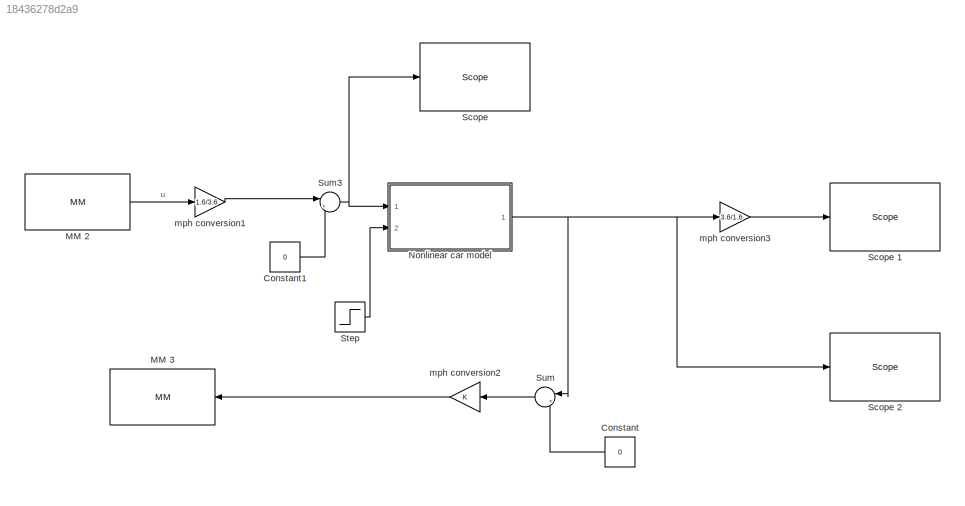
MODEL slx_18436278d2a9
KIND model
BLOCK [Constant] Constant
  Value = 0
BLOCK [Constant] Constant1
  Value = 0
BLOCK [Reference] MM 2  REF=xpcdiamondlib/A//D/MM 
  Ports = [0, 1]
  SourceBlock = xpcdiamondlib/A//D/MM
  SourceType = addiamondmm
  base = 0x300
  coupling = 16 single-ended channels
  numChans = 1
  range = -5V to 5V
  sampleTime = 0.01
  showStatus = off
BLOCK [Reference] MM 3  REF=xpcdiamondlib/D//A/MM 
  Ports = [1]
  SourceBlock = xpcdiamondlib/D//A/MM
  SourceType = dadiamondmm
  base = 0x300
  channel = [1]
  initValue = [0]
  range = [5]
  reset = [1]
  sampleTime = 0.01
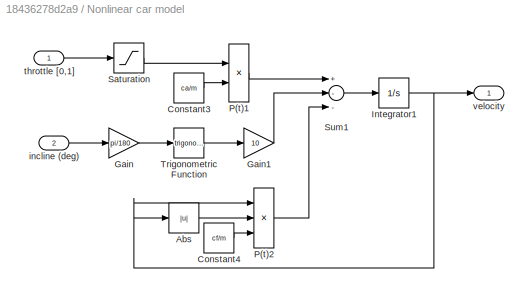
BLOCK [SubSystem] Nonlinear car model
  Ports = [2, 1]
  RequestExecContextInheritance = off
BLOCK [Abs] Nonlinear car model/Abs
BLOCK [Constant] Nonlinear car model/Constant3
  Value = ca/m
BLOCK [Constant] Nonlinear car model/Constant4
  Value = cf/m
BLOCK [Gain] Nonlinear car model/Gain
  Gain = pi/180
BLOCK [Gain] Nonlinear car model/Gain1
  Gain = 10
BLOCK [Integrator] Nonlinear car model/Integrator1
  InitialCondition = 26.67
  LowerSaturationLimit = 0
  Ports = [1, 1]
  UpperSaturationLimit = 1
BLOCK [Product] Nonlinear car model/P(t)1
  Inputs = **
  Ports = [2, 1]
BLOCK [Product] Nonlinear car model/P(t)2
  Inputs = ***
  Ports = [3, 1]
BLOCK [Saturate] Nonlinear car model/Saturation
  InputPortMap = u0
  LowerLimit = -1
  Ports = [1, 1]
  UpperLimit = 3
BLOCK [Sum] Nonlinear car model/Sum1
  Inputs = +--
  Ports = [3, 1]
BLOCK [Trigonometry] Nonlinear car model/Trigonometric Function
  Ports = [1, 1]
BLOCK [Inport] Nonlinear car model/incline (deg)
  IconDisplay = Port number
  Port = 2
BLOCK [Inport] Nonlinear car model/throttle [0,1]
  IconDisplay = Port number
BLOCK [Outport] Nonlinear car model/velocity
  IconDisplay = Port number
BLOCK [Reference] Scope   REF=slrtlib/Displays and
Logging/Scope 
  Ports = [1]
  SourceBlock = slrtlib/Displays and\nLogging/Scope
  SourceType = xpcscopeblock
  autorestart = on
  autostart = on
  dynamicfilemode = off
  filename = datap3.dat
  formatstr = '%15.6f'
  grid = on
  interleave = 1
  maxwritefilesize = 512*1024^2
  mode = Lazy
  noprepostsamples = 0
  nosamples = 5000
  scopeno = 3
  scopetype = File
  triggerlevel = 0.0
  triggermode = FreeRun
  triggersample = 0
  triggerscope = 1
  triggersignal = 1
  triggerslope = Either
  trigsignalfromport = off
  viewmode = Graphical redraw
  writesize = 512
  ylimits = [0,0]
BLOCK [Reference] Scope 1  REF=slrtlib/Displays and
Logging/Scope 
  Ports = [1]
  SourceBlock = slrtlib/Displays and\nLogging/Scope
  SourceType = xpcscopeblock
  autorestart = on
  autostart = on
  dynamicfilemode = off
  filename = datap1.dat
  formatstr = '%15.6f'
  grid = on
  interleave = 1
  maxwritefilesize = 512*1024^2
  mode = Lazy
  noprepostsamples = 0
  nosamples = 5000
  scopeno = 1
  scopetype = File
  triggerlevel = 0.0
  triggermode = FreeRun
  triggersample = 0
  triggerscope = 1
  triggersignal = 1
  triggerslope = Either
  trigsignalfromport = off
  viewmode = Graphical redraw
  writesize = 512
  ylimits = [0,0]
BLOCK [Reference] Scope 2  REF=slrtlib/Displays and
Logging/Scope 
  Ports = [1]
  SourceBlock = slrtlib/Displays and\nLogging/Scope
  SourceType = xpcscopeblock
  autorestart = on
  autostart = on
  dynamicfilemode = off
  filename = datap2.dat
  formatstr = '%15.6f'
  grid = on
  interleave = 1
  maxwritefilesize = 512*1024^2
  mode = Lazy
  noprepostsamples = 0
  nosamples = 5000
  scopeno = 2
  scopetype = File
  triggerlevel = 0.0
  triggermode = FreeRun
  triggersample = 0
  triggerscope = 1
  triggersignal = 1
  triggerslope = Either
  trigsignalfromport = off
  viewmode = Graphical redraw
  writesize = 512
  ylimits = [0,0]
BLOCK [Step] Step
  After = 65
  Before = 60
  SampleTime = 0
  Time = 10
BLOCK [Sum] Sum
  IconShape = round
  InputSameDT = off
  Inputs = |++
  OutDataTypeStr = Inherit: Inherit via internal rule
  Ports = [2, 1]
  SaturateOnIntegerOverflow = off
BLOCK [Sum] Sum3
  IconShape = round
  InputSameDT = off
  Inputs = |++
  OutDataTypeStr = Inherit: Inherit via internal rule
  Ports = [2, 1]
  SaturateOnIntegerOverflow = off
BLOCK [Gain] mph conversion1
  Gain = 1.6/3.6
BLOCK [Gain] mph conversion2
BLOCK [Gain] mph conversion3
  Gain = 3.6/1.6
LINE Constant1:1 -> Sum3:2
LINE Constant:1 -> Sum:2
LINE MM 2:1 -> mph conversion1:1
LINE Nonlinear car model/Abs:1 -> Nonlinear car model/P(t)2:2
LINE Nonlinear car model/Constant3:1 -> Nonlinear car model/P(t)1:2
LINE Nonlinear car model/Constant4:1 -> Nonlinear car model/P(t)2:3
LINE Nonlinear car model/Gain1:1 -> Nonlinear car model/Sum1:2
LINE Nonlinear car model/Gain:1 -> Nonlinear car model/Trigonometric Function:1
NET Nonlinear car model/Integrator1:1 -> Nonlinear car model/Abs:1, Nonlinear car model/P(t)2:1, Nonlinear car model/velocity:1
LINE Nonlinear car model/P(t)1:1 -> Nonlinear car model/Sum1:1
LINE Nonlinear car model/P(t)2:1 -> Nonlinear car model/Sum1:3
LINE Nonlinear car model/Saturation:1 -> Nonlinear car model/P(t)1:1
LINE Nonlinear car model/Sum1:1 -> Nonlinear car model/Integrator1:1
LINE Nonlinear car model/Trigonometric Function:1 -> Nonlinear car model/Gain1:1
LINE Nonlinear car model/incline (deg):1 -> Nonlinear car model/Gain:1
LINE Nonlinear car model/throttle [0,1]:1 -> Nonlinear car model/Saturation:1
NET Nonlinear car model:1 -> Scope 2:1, Sum:1, mph conversion3:1
LINE Step:1 -> Nonlinear car model:2
NET Sum3:1 -> Nonlinear car model:1, Scope :1
LINE Sum:1 -> mph conversion2:1
LINE mph conversion1:1 -> Sum3:1
LINE mph conversion2:1 -> MM 3:1
LINE mph conversion3:1 -> Scope 1:1
note: NET lines group one-source signal fan-out (src -> all destinations, sorted); 1:1 wires keep LINE
